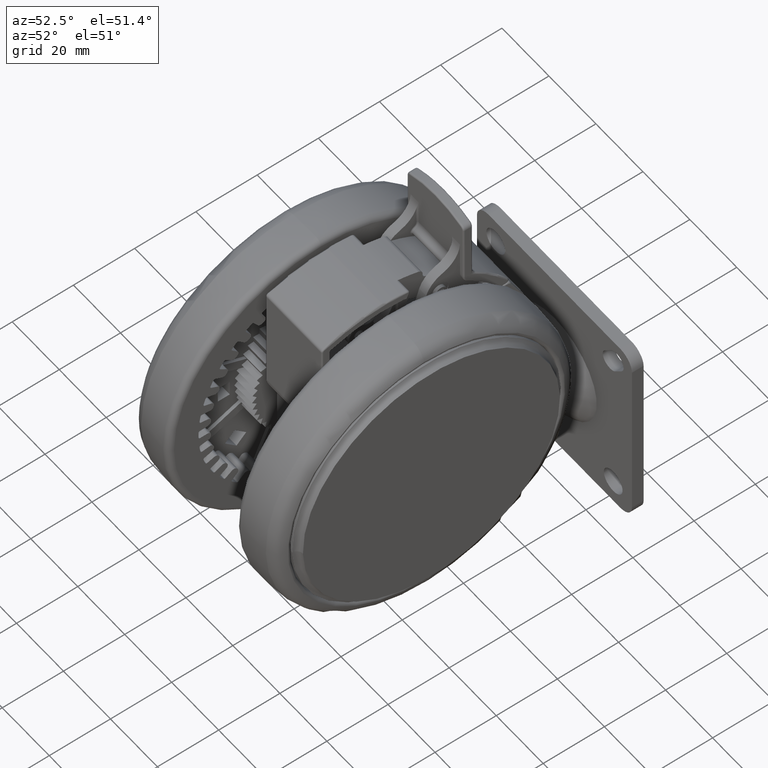
[diagram: clean part render]
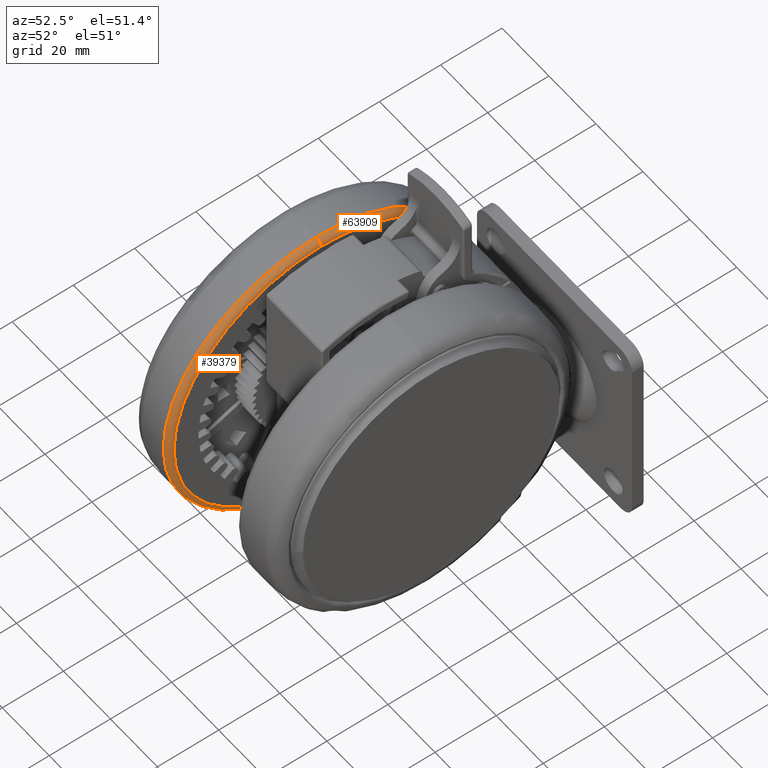
[diagram: same view with one multi-face feature highlighted, each face labeled with its STEP entity id]
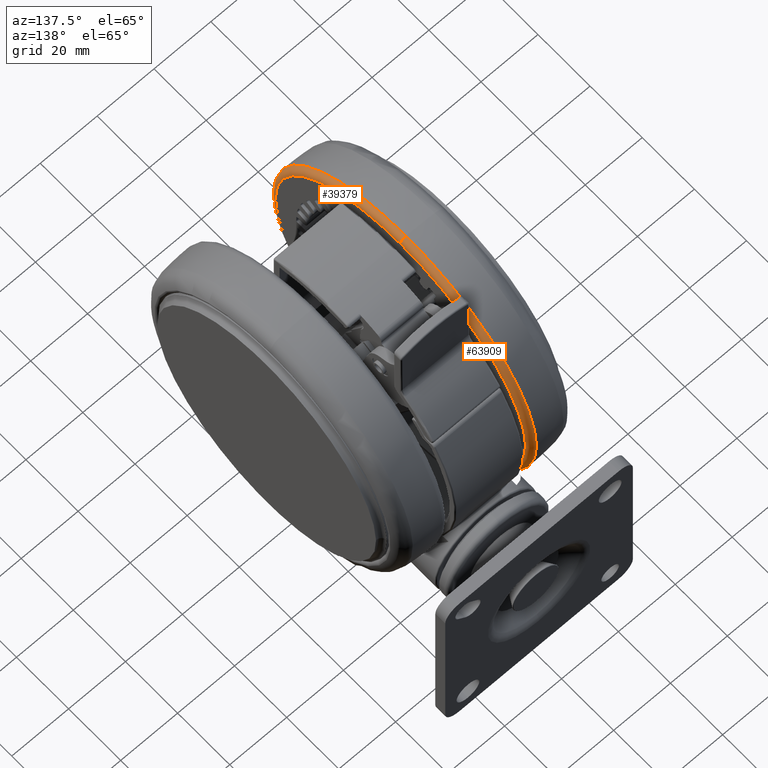
[diagram: same view with one multi-face feature highlighted, each face labeled with its STEP entity id]
A machine part, auxiliary view. The highlighted faces form ONE feature: a constant-radius fillet chain: 2 tangent blend faces with common blend radius 2 mm. The faces share edges in the B-rep.
A second angle (auxiliary view) of the same feature is appended — it is thin or edge-on in the first view.
Their STEP definitions:
[1] entity #63909 (Torus):
#349 = EDGE_LOOP ( 'NONE', ( #69708, #4383, #13822, #40467 ) ) ;
#1993 = EDGE_CURVE ( 'NONE', #10202, #30021, #16240, .T. ) ;
#3480 = DIRECTION ( 'NONE',  ( -0.02026128721468448100, -0.9997947190500678900, 0.0000000000000000000 ) ) ;
#4383 = ORIENTED_EDGE ( 'NONE', *, *, #53681, .T. ) ;
#9258 = DIRECTION ( 'NONE',  ( -0.0000000000000000000, 0.0000000000000000000, -1.000000000000000000 ) ) ;
#10202 = VERTEX_POINT ( 'NONE', #72627 ) ;
#13822 = ORIENTED_EDGE ( 'NONE', *, *, #1993, .F. ) ;
#16240 = CIRCLE ( 'NONE', #66882, 50.00000000000000700 ) ;
#19983 = CARTESIAN_POINT ( 'NONE',  ( 4.905534659038757200E-008, 4.841775480546317600E-006, -47.09999999999985200 ) ) ;
#21245 = FACE_OUTER_BOUND ( 'NONE', #349, .T. ) ;
#25194 = AXIS2_PLACEMENT_3D ( 'NONE', #81132, #42715, #49135 ) ;
#26310 = CARTESIAN_POINT ( 'NONE',  ( -0.9725423849658322300, -47.99017363423747900, -49.09999999999984500 ) ) ;
#26416 = DIRECTION ( 'NONE',  ( -0.02026128721468460600, -0.9997947190500680000, 0.0000000000000000000 ) ) ;
#29032 = CARTESIAN_POINT ( 'NONE',  ( -0.9725423849658322300, -47.99017363423747900, -47.09999999999985200 ) ) ;
#29238 = EDGE_CURVE ( 'NONE', #41783, #10202, #48457, .T. ) ;
#30021 = VERTEX_POINT ( 'NONE', #73764 ) ;
#32719 = DIRECTION ( 'NONE',  ( 0.02026128721468458900, 0.9997947190500678900, 0.0000000000000000000 ) ) ;
#35695 = VERTEX_POINT ( 'NONE', #65389 ) ;
#38234 = TOROIDAL_SURFACE ( 'NONE', #25194, 48.00003196817215900, 1.999999999999999100 ) ;
#40467 = ORIENTED_EDGE ( 'NONE', *, *, #29238, .F. ) ;
#41732 = DIRECTION ( 'NONE',  ( -0.9997947190500678900, 0.02026128721468448100, 0.0000000000000000000 ) ) ;
#41783 = VERTEX_POINT ( 'NONE', #29032 ) ;
#42715 = DIRECTION ( 'NONE',  ( -0.0000000000000000000, 0.0000000000000000000, -1.000000000000000000 ) ) ;
#47536 = CARTESIAN_POINT ( 'NONE',  ( 4.905534659038757200E-008, 4.841775480546317600E-006, -49.08869196450866900 ) ) ;
#48457 = CIRCLE ( 'NONE', #55988, 1.999999999999999800 ) ;
#49108 = EDGE_CURVE ( 'NONE', #41783, #35695, #81439, .T. ) ;
#49135 = DIRECTION ( 'NONE',  ( -0.02026128721468459900, -0.9997947190500677800, 0.0000000000000000000 ) ) ;
#53681 = EDGE_CURVE ( 'NONE', #35695, #30021, #77645, .T. ) ;
#54021 = DIRECTION ( 'NONE',  ( -0.02026128721468460300, -0.9997947190500677800, 0.0000000000000000000 ) ) ;
#54662 = AXIS2_PLACEMENT_3D ( 'NONE', #19983, #64794, #26416 ) ;
#55988 = AXIS2_PLACEMENT_3D ( 'NONE', #26310, #71119, #32719 ) ;
#63909 = ADVANCED_FACE ( 'NONE', ( #21245 ), #38234, .T. ) ;
#64794 = DIRECTION ( 'NONE',  ( -0.0000000000000000000, 0.0000000000000000000, -1.000000000000000000 ) ) ;
#65389 = CARTESIAN_POINT ( 'NONE',  ( 0.9725424830765194700, 47.99018331778844300, -47.09999999999985200 ) ) ;
#66882 = AXIS2_PLACEMENT_3D ( 'NONE', #47536, #9258, #54021 ) ;
#69708 = ORIENTED_EDGE ( 'NONE', *, *, #49108, .T. ) ;
#71119 = DIRECTION ( 'NONE',  ( 0.9997947190500678900, -0.02026128721468460300, -0.0000000000000000000 ) ) ;
#72627 = CARTESIAN_POINT ( 'NONE',  ( -1.013064311678883300, -49.98973111072790900, -49.08869196450866900 ) ) ;
#73764 = CARTESIAN_POINT ( 'NONE',  ( 1.013064409789570500, 49.98974079427887300, -49.08869196450866900 ) ) ;
#77645 = CIRCLE ( 'NONE', #79742, 1.999999999999999800 ) ;
#79742 = AXIS2_PLACEMENT_3D ( 'NONE', #80156, #41732, #3480 ) ;
#80156 = CARTESIAN_POINT ( 'NONE',  ( 0.9725424830765194700, 47.99018331778844300, -49.09999999999984500 ) ) ;
#81132 = CARTESIAN_POINT ( 'NONE',  ( 4.905534659038757200E-008, 4.841775480546317600E-006, -49.09999999999984500 ) ) ;
#81439 = CIRCLE ( 'NONE', #54662, 48.00003196817215200 ) ;
[2] entity #39379 (Torus):
#908 = DIRECTION ( 'NONE',  ( -0.02026128721468460300, -0.9997947190500677800, 0.0000000000000000000 ) ) ;
#1211 = EDGE_CURVE ( 'NONE', #35695, #41783, #47211, .T. ) ;
#3480 = DIRECTION ( 'NONE',  ( -0.02026128721468448100, -0.9997947190500678900, 0.0000000000000000000 ) ) ;
#10034 = AXIS2_PLACEMENT_3D ( 'NONE', #56954, #31169, #31446 ) ;
#10202 = VERTEX_POINT ( 'NONE', #72627 ) ;
#10499 = CIRCLE ( 'NONE', #24993, 50.00000000000000700 ) ;
#19136 = ORIENTED_EDGE ( 'NONE', *, *, #1211, .T. ) ;
#19214 = DIRECTION ( 'NONE',  ( -0.0000000000000000000, 0.0000000000000000000, -1.000000000000000000 ) ) ;
#19348 = FACE_OUTER_BOUND ( 'NONE', #40597, .T. ) ;
#24993 = AXIS2_PLACEMENT_3D ( 'NONE', #77567, #39150, #908 ) ;
#26310 = CARTESIAN_POINT ( 'NONE',  ( -0.9725423849658322300, -47.99017363423747900, -49.09999999999984500 ) ) ;
#29032 = CARTESIAN_POINT ( 'NONE',  ( -0.9725423849658322300, -47.99017363423747900, -47.09999999999985200 ) ) ;
#29238 = EDGE_CURVE ( 'NONE', #41783, #10202, #48457, .T. ) ;
#30021 = VERTEX_POINT ( 'NONE', #73764 ) ;
#30769 = ORIENTED_EDGE ( 'NONE', *, *, #38286, .F. ) ;
#31169 = DIRECTION ( 'NONE',  ( -0.0000000000000000000, 0.0000000000000000000, -1.000000000000000000 ) ) ;
#31446 = DIRECTION ( 'NONE',  ( -0.02026128721468459900, -0.9997947190500677800, 0.0000000000000000000 ) ) ;
#32320 = TOROIDAL_SURFACE ( 'NONE', #10034, 48.00003196817215900, 1.999999999999999100 ) ;
#32719 = DIRECTION ( 'NONE',  ( 0.02026128721468458900, 0.9997947190500678900, 0.0000000000000000000 ) ) ;
#35695 = VERTEX_POINT ( 'NONE', #65389 ) ;
#38286 = EDGE_CURVE ( 'NONE', #30021, #10202, #10499, .T. ) ;
#39150 = DIRECTION ( 'NONE',  ( -0.0000000000000000000, 0.0000000000000000000, -1.000000000000000000 ) ) ;
#39379 = ADVANCED_FACE ( 'NONE', ( #19348 ), #32320, .T. ) ;
#40597 = EDGE_LOOP ( 'NONE', ( #40632, #19136, #54757, #30769 ) ) ;
#40632 = ORIENTED_EDGE ( 'NONE', *, *, #53681, .F. ) ;
#41732 = DIRECTION ( 'NONE',  ( -0.9997947190500678900, 0.02026128721468448100, 0.0000000000000000000 ) ) ;
#41783 = VERTEX_POINT ( 'NONE', #29032 ) ;
#47211 = CIRCLE ( 'NONE', #50137, 48.00003196817215200 ) ;
#48457 = CIRCLE ( 'NONE', #55988, 1.999999999999999800 ) ;
#50137 = AXIS2_PLACEMENT_3D ( 'NONE', #57555, #19214, #64009 ) ;
#53681 = EDGE_CURVE ( 'NONE', #35695, #30021, #77645, .T. ) ;
#54757 = ORIENTED_EDGE ( 'NONE', *, *, #29238, .T. ) ;
#55988 = AXIS2_PLACEMENT_3D ( 'NONE', #26310, #71119, #32719 ) ;
#56954 = CARTESIAN_POINT ( 'NONE',  ( 4.905534659038757200E-008, 4.841775480546317600E-006, -49.09999999999984500 ) ) ;
#57555 = CARTESIAN_POINT ( 'NONE',  ( 4.905534659038757200E-008, 4.841775480546317600E-006, -47.09999999999985200 ) ) ;
#64009 = DIRECTION ( 'NONE',  ( -0.02026128721468460600, -0.9997947190500680000, 0.0000000000000000000 ) ) ;
#65389 = CARTESIAN_POINT ( 'NONE',  ( 0.9725424830765194700, 47.99018331778844300, -47.09999999999985200 ) ) ;
#71119 = DIRECTION ( 'NONE',  ( 0.9997947190500678900, -0.02026128721468460300, -0.0000000000000000000 ) ) ;
#72627 = CARTESIAN_POINT ( 'NONE',  ( -1.013064311678883300, -49.98973111072790900, -49.08869196450866900 ) ) ;
#73764 = CARTESIAN_POINT ( 'NONE',  ( 1.013064409789570500, 49.98974079427887300, -49.08869196450866900 ) ) ;
#77567 = CARTESIAN_POINT ( 'NONE',  ( 4.905534659038757200E-008, 4.841775480546317600E-006, -49.08869196450866900 ) ) ;
#77645 = CIRCLE ( 'NONE', #79742, 1.999999999999999800 ) ;
#79742 = AXIS2_PLACEMENT_3D ( 'NONE', #80156, #41732, #3480 ) ;
#80156 = CARTESIAN_POINT ( 'NONE',  ( 0.9725424830765194700, 47.99018331778844300, -49.09999999999984500 ) ) ;